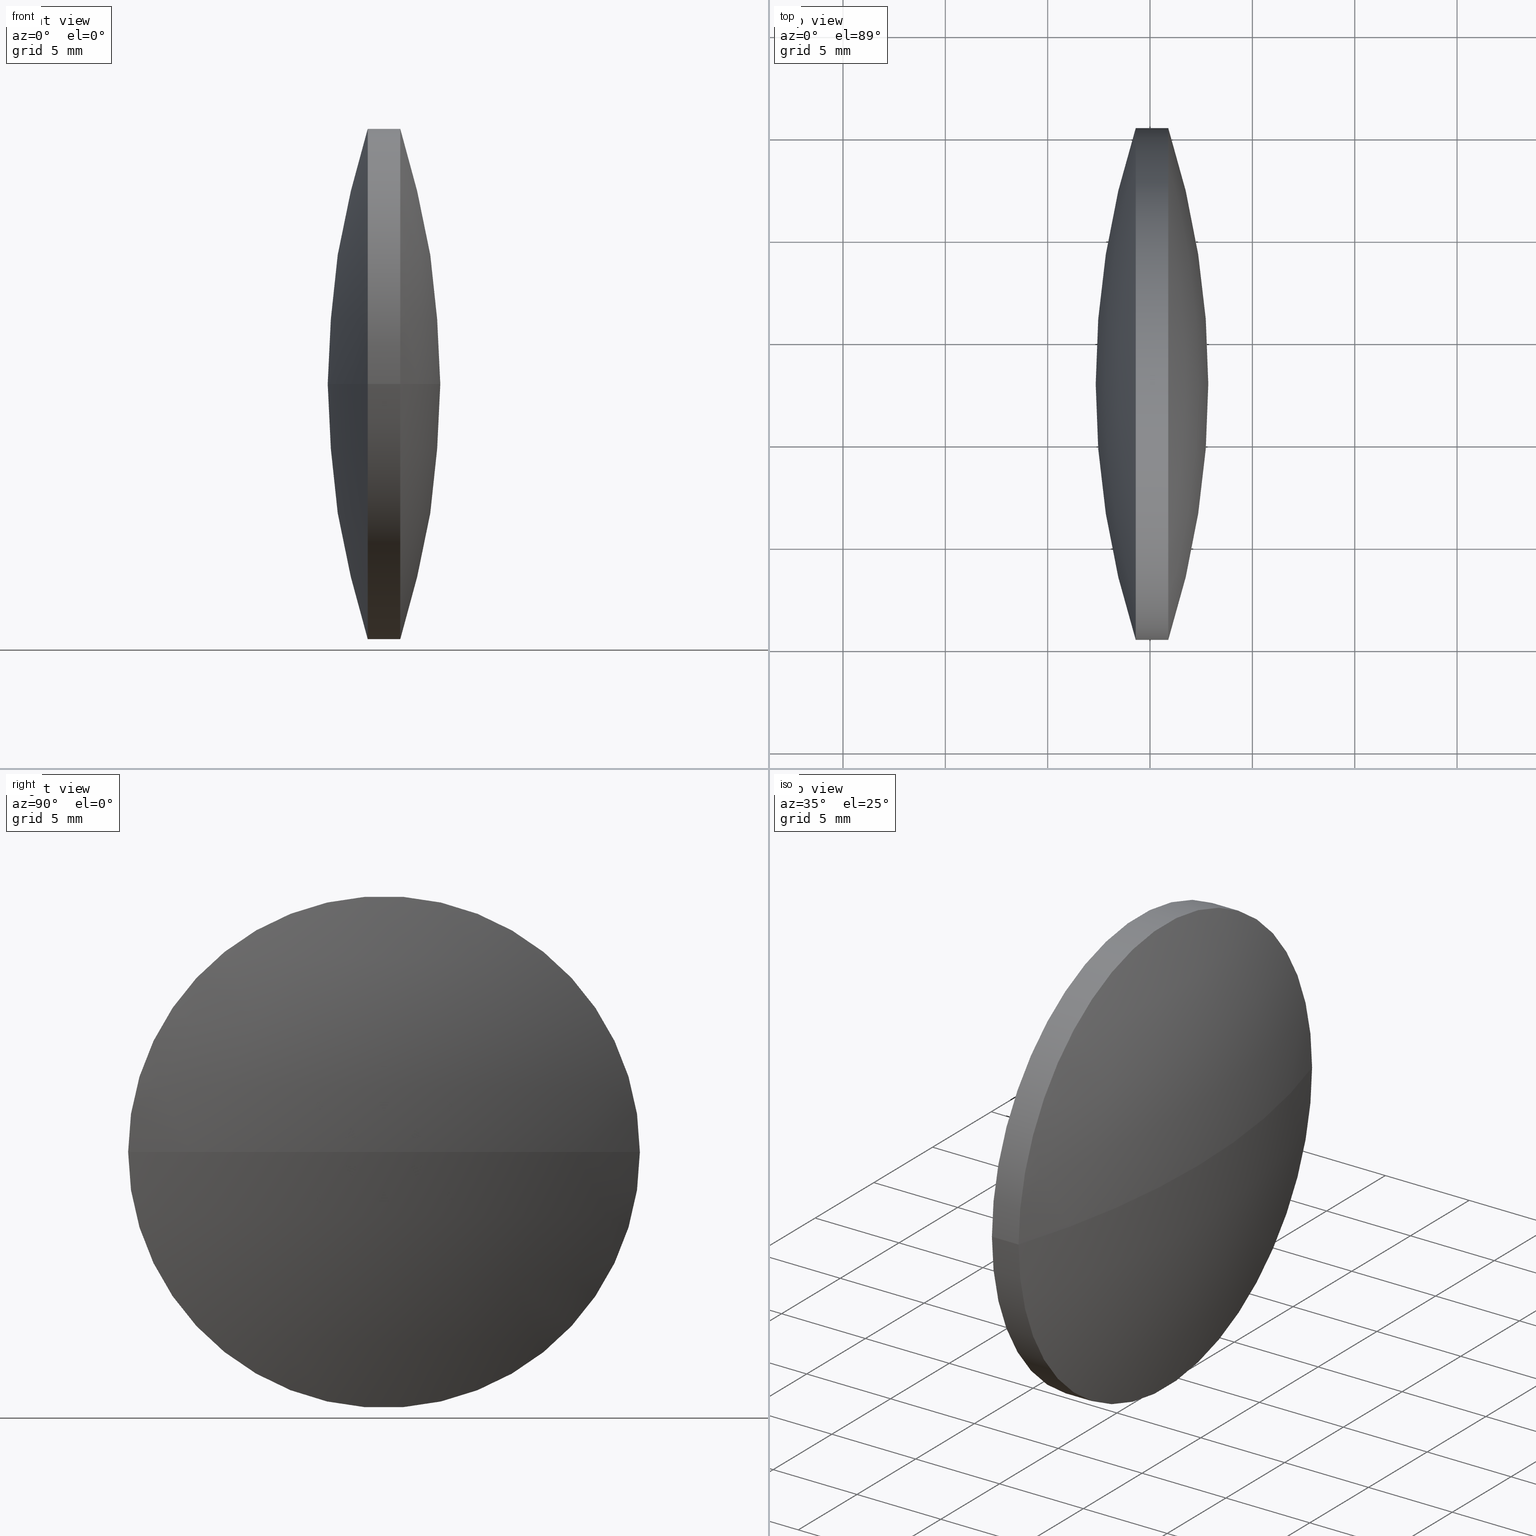
[diagram: canonical four-view strip — front | top / right | iso, engineering-drawing reading convention]
A machine part, canonical four-view strip (front | top / right | iso — engineering-drawing reading convention). The complete STEP part file that produces these views, byte-faithful:
ISO-10303-21;
HEADER;
FILE_DESCRIPTION (( 'STEP AP203' ),
    '1' );
FILE_NAME ('110017.STEP',
    '2019-06-25T06:04:12',
    ( '' ),
    ( '' ),
    'SwSTEP 2.0',
    'SolidWorks 2016',
    '' );
FILE_SCHEMA (( 'CONFIG_CONTROL_DESIGN' ));
ENDSEC;

DATA;
#1 = APPROVAL_DATE_TIME ( #155, #90 ) ;
#2 = CARTESIAN_POINT ( 'NONE',  ( 123.2857842446510100, 47.85050494407934700, 0.0000000000000000000 ) ) ;
#3 = ORIENTED_EDGE ( 'NONE', *, *, #148, .T. ) ;
#4 = CC_DESIGN_PERSON_AND_ORGANIZATION_ASSIGNMENT ( #129, #229, ( #127 ) ) ;
#5 = CC_DESIGN_PERSON_AND_ORGANIZATION_ASSIGNMENT ( #235, #253, ( #203 ) ) ;
#6 = PERSON_AND_ORGANIZATION ( #196, #99 ) ;
#7 = AXIS2_PLACEMENT_3D ( 'NONE', #194, #216, #76 ) ;
#8 = ORIENTED_EDGE ( 'NONE', *, *, #146, .T. ) ;
#9 = FACE_OUTER_BOUND ( 'NONE', #116, .T. ) ;
#10 = DESIGN_CONTEXT ( 'detailed design', #274, 'design' ) ;
#11 = ORIENTED_EDGE ( 'NONE', *, *, #264, .F. ) ;
#12 = PERSON_AND_ORGANIZATION ( #196, #99 ) ;
#13 = CC_DESIGN_DATE_AND_TIME_ASSIGNMENT ( #24, #278, ( #127 ) ) ;
#14 = EDGE_LOOP ( 'NONE', ( #186, #103, #286, #258 ) ) ;
#15 =( LENGTH_UNIT ( ) NAMED_UNIT ( * ) SI_UNIT ( .MILLI., .METRE. ) );
#16 = DATE_AND_TIME ( #272, #29 ) ;
#17 = MECHANICAL_CONTEXT ( 'NONE', #183, 'mechanical' ) ;
#18 = APPROVAL_ROLE ( '' ) ;
#19 = EDGE_LOOP ( 'NONE', ( #173, #93, #224 ) ) ;
#20 = ADVANCED_FACE ( 'NONE', ( #31 ), #134, .T. ) ;
#21 = SECURITY_CLASSIFICATION_LEVEL ( 'unclassified' ) ;
#22 = APPROVAL_DATE_TIME ( #160, #265 ) ;
#23 = EDGE_CURVE ( 'NONE', #25, #172, #44, .T. ) ;
#24 = DATE_AND_TIME ( #81, #147 ) ;
#25 = VERTEX_POINT ( 'NONE', #233 ) ;
#26 = DIRECTION ( 'NONE',  ( 0.0000000000000000000, 0.0000000000000000000, -1.000000000000000000 ) ) ;
#27 = PERSON_AND_ORGANIZATION ( #196, #99 ) ;
#28 = EDGE_CURVE ( 'NONE', #232, #172, #164, .T. ) ;
#29 = LOCAL_TIME ( 14, 4, 12.00000000000000000, #91 ) ;
#30 = DIRECTION ( 'NONE',  ( 4.406815958448730300E-015, 1.000000000000000000, 0.0000000000000000000 ) ) ;
#31 = FACE_OUTER_BOUND ( 'NONE', #136, .T. ) ;
#32 = LOCAL_TIME ( 14, 4, 12.00000000000000000, #138 ) ;
#33 = AXIS2_PLACEMENT_3D ( 'NONE', #206, #140, #163 ) ;
#34 = DIRECTION ( 'NONE',  ( -4.440892098500634100E-015, -1.000000000000000000, 0.0000000000000000000 ) ) ;
#35 = COORDINATED_UNIVERSAL_TIME_OFFSET ( 8, 0, .AHEAD. ) ;
#36 = FACE_OUTER_BOUND ( 'NONE', #19, .T. ) ;
#37 = VERTEX_POINT ( 'NONE', #142 ) ;
#38 = PERSON_AND_ORGANIZATION_ROLE ( 'creator' ) ;
#39 = APPROVAL_PERSON_ORGANIZATION ( #228, #188, #139 ) ;
#40 = SECURITY_CLASSIFICATION_LEVEL ( 'unclassified' ) ;
#41 = PERSON_AND_ORGANIZATION_ROLE ( 'creator' ) ;
#42 = AXIS2_PLACEMENT_3D ( 'NONE', #97, #48, #290 ) ;
#43 = LOCAL_TIME ( 14, 4, 12.00000000000000000, #102 ) ;
#44 = CIRCLE ( 'NONE', #296, 12.49999999999998400 ) ;
#45 = AXIS2_PLACEMENT_3D ( 'NONE', #260, #289, #271 ) ;
#46 = LOCAL_TIME ( 14, 4, 12.00000000000000000, #219 ) ;
#47 = DIRECTION ( 'NONE',  ( -4.440892098500634100E-015, -1.000000000000000000, 0.0000000000000000000 ) ) ;
#48 = DIRECTION ( 'NONE',  ( -1.000000000000000000, 4.264506765781650100E-015, -0.0000000000000000000 ) ) ;
#49 = PERSON_AND_ORGANIZATION ( #196, #99 ) ;
#50 = ORIENTED_EDGE ( 'NONE', *, *, #283, .F. ) ;
#51 = CALENDAR_DATE ( 2019, 25, 6 ) ;
#52 = AXIS2_PLACEMENT_3D ( 'NONE', #120, #144, #47 ) ;
#53 = PERSON_AND_ORGANIZATION ( #196, #99 ) ;
#54 = ORIENTED_EDGE ( 'NONE', *, *, #264, .T. ) ;
#55 =( NAMED_UNIT ( * ) PLANE_ANGLE_UNIT ( ) SI_UNIT ( $, .RADIAN. ) );
#56 = DATE_AND_TIME ( #302, #190 ) ;
#57 = CC_DESIGN_SECURITY_CLASSIFICATION ( #127, ( #231 ) ) ;
#58 = PERSON_AND_ORGANIZATION_ROLE ( 'classification_officer' ) ;
#59 = EDGE_CURVE ( 'NONE', #86, #255, #141, .T. ) ;
#60 = ADVANCED_FACE ( 'NONE', ( #209 ), #68, .T. ) ;
#61 = ADVANCED_FACE ( 'NONE', ( #197 ), #113, .T. ) ;
#62 = APPLICATION_PROTOCOL_DEFINITION ( 'international standard', 'config_control_design', 1994, #274 ) ;
#63 = COORDINATED_UNIVERSAL_TIME_OFFSET ( 8, 0, .AHEAD. ) ;
#64 = AXIS2_PLACEMENT_3D ( 'NONE', #95, #169, #300 ) ;
#65 = ORIENTED_EDGE ( 'NONE', *, *, #98, .T. ) ;
#66 = SPHERICAL_SURFACE ( 'NONE', #170, 40.93913682864477700 ) ;
#67 = VECTOR ( 'NONE', #180, 1000.000000000000000 ) ;
#68 = CYLINDRICAL_SURFACE ( 'NONE', #52, 12.49999999999997700 ) ;
#69 = DIRECTION ( 'NONE',  ( 0.0000000000000000000, 1.000000000000000000, 1.224646799147353200E-016 ) ) ;
#70 = CIRCLE ( 'NONE', #179, 40.93913682864476300 ) ;
#71 = DIRECTION ( 'NONE',  ( 4.237323036969965800E-015, 1.000000000000000000, 0.0000000000000000000 ) ) ;
#72 = CC_DESIGN_DATE_AND_TIME_ASSIGNMENT ( #284, #110, ( #268 ) ) ;
#73 = PERSON_AND_ORGANIZATION ( #196, #99 ) ;
#74 = DIRECTION ( 'NONE',  ( 0.0000000000000000000, 0.0000000000000000000, -1.000000000000000000 ) ) ;
#75 = CARTESIAN_POINT ( 'NONE',  ( 82.34664741600623500, 47.85050494407952500, 0.0000000000000000000 ) ) ;
#76 = DIRECTION ( 'NONE',  ( 0.0000000000000000000, 1.000000000000000000, 1.224646799147353200E-016 ) ) ;
#77 = PRODUCT ( '110017', '110017', '', ( #227 ) ) ;
#78 = PRODUCT_RELATED_PRODUCT_CATEGORY ( 'detail', '', ( #128 ) ) ;
#79 = LINE ( 'NONE', #104, #67 ) ;
#80 = LOCAL_TIME ( 14, 4, 12.00000000000000000, #35 ) ;
#81 = CALENDAR_DATE ( 2019, 25, 6 ) ;
#82 = DIRECTION ( 'NONE',  ( 1.000000000000000000, 0.0000000000000000000, 0.0000000000000000000 ) ) ;
#83 =( NAMED_UNIT ( * ) SI_UNIT ( $, .STERADIAN. ) SOLID_ANGLE_UNIT ( ) );
#84 = UNCERTAINTY_MEASURE_WITH_UNIT (LENGTH_MEASURE( 1.000000000000000100E-005 ), #15, 'distance_accuracy_value', 'NONE');
#85 = APPLICATION_PROTOCOL_DEFINITION ( 'international standard', 'config_control_design', 1994, #183 ) ;
#86 = VERTEX_POINT ( 'NONE', #189 ) ;
#87 = APPROVAL_STATUS ( 'not_yet_approved' ) ;
#88 = APPROVAL_DATE_TIME ( #177, #220 ) ;
#89 = APPROVAL_STATUS ( 'not_yet_approved' ) ;
#90 = APPROVAL ( #87, 'δָ��' ) ;
#91 = COORDINATED_UNIVERSAL_TIME_OFFSET ( 8, 0, .AHEAD. ) ;
#92 = CC_DESIGN_APPROVAL ( #218, ( #200 ) ) ;
#93 = ORIENTED_EDGE ( 'NONE', *, *, #59, .T. ) ;
#94 = EDGE_CURVE ( 'NONE', #37, #86, #285, .T. ) ;
#95 = CARTESIAN_POINT ( 'NONE',  ( 0.0000000000000000000, 0.0000000000000000000, 0.0000000000000000000 ) ) ;
#96 = ADVANCED_FACE ( 'NONE', ( #217 ), #195, .T. ) ;
#97 = CARTESIAN_POINT ( 'NONE',  ( 84.30164741600614800, 47.85050494407936800, 0.0000000000000000000 ) ) ;
#98 = EDGE_CURVE ( 'NONE', #172, #37, #234, .T. ) ;
#99 = ORGANIZATION ( 'δָ��', 'δָ��', '' ) ;
#100 = LOCAL_TIME ( 14, 4, 12.00000000000000000, #106 ) ;
#101 = AXIS2_PLACEMENT_3D ( 'NONE', #130, #238, #292 ) ;
#102 = COORDINATED_UNIVERSAL_TIME_OFFSET ( 8, 0, .AHEAD. ) ;
#103 = ORIENTED_EDGE ( 'NONE', *, *, #283, .T. ) ;
#104 = CARTESIAN_POINT ( 'NONE',  ( 81.21296991275001200, 35.35050494407940400, 0.0000000000000000000 ) ) ;
#105 = CARTESIAN_POINT ( 'NONE',  ( 85.89164741600619400, 60.35050494407934000, 0.0000000000000000000 ) ) ;
#106 = COORDINATED_UNIVERSAL_TIME_OFFSET ( 8, 0, .AHEAD. ) ;
#107 = PERSON_AND_ORGANIZATION_ROLE ( 'design_supplier' ) ;
#108 =( GEOMETRIC_REPRESENTATION_CONTEXT ( 3 ) GLOBAL_UNCERTAINTY_ASSIGNED_CONTEXT ( ( #84 ) ) GLOBAL_UNIT_ASSIGNED_CONTEXT ( ( #15, #55, #83 ) ) REPRESENTATION_CONTEXT ( 'NONE', 'WORKASPACE' ) );
#109 = APPROVAL_ROLE ( '' ) ;
#110 = DATE_TIME_ROLE ( 'classification_date' ) ;
#111 = PERSON_AND_ORGANIZATION ( #196, #99 ) ;
#112 = CC_DESIGN_APPROVAL ( #188, ( #251 ) ) ;
#113 = SPHERICAL_SURFACE ( 'NONE', #131, 40.93913682864445000 ) ;
#114 = DIRECTION ( 'NONE',  ( -1.000000000000000000, 4.264506765781650100E-015, -0.0000000000000000000 ) ) ;
#115 = CC_DESIGN_DATE_AND_TIME_ASSIGNMENT ( #198, #303, ( #251 ) ) ;
#116 = EDGE_LOOP ( 'NONE', ( #240, #54, #50 ) ) ;
#117 = VECTOR ( 'NONE', #248, 1000.000000000000000 ) ;
#118 = CALENDAR_DATE ( 2019, 25, 6 ) ;
#119 = ADVANCED_BREP_SHAPE_REPRESENTATION ( '110017', ( #151, #64 ), #108 ) ;
#120 = CARTESIAN_POINT ( 'NONE',  ( 81.21296991275006900, 47.85050494407938300, 0.0000000000000000000 ) ) ;
#121 = DIRECTION ( 'NONE',  ( 5.222514560656729000E-031, 1.224646799147353200E-016, -1.000000000000000000 ) ) ;
#122 = DIRECTION ( 'NONE',  ( -4.440892098500634100E-015, -1.000000000000000000, 0.0000000000000000000 ) ) ;
#123 = CC_DESIGN_APPROVAL ( #90, ( #268 ) ) ;
#124 = APPROVAL_PERSON_ORGANIZATION ( #171, #218, #158 ) ;
#125 = CLOSED_SHELL ( 'NONE', ( #96, #281, #277, #20, #61, #60 ) ) ;
#126 = COORDINATED_UNIVERSAL_TIME_OFFSET ( 8, 0, .AHEAD. ) ;
#127 = SECURITY_CLASSIFICATION ( '', '', #21 ) ;
#128 = PRODUCT ( '110017', '110017', '', ( #17 ) ) ;
#129 = PERSON_AND_ORGANIZATION ( #196, #99 ) ;
#130 = CARTESIAN_POINT ( 'NONE',  ( 0.0000000000000000000, 0.0000000000000000000, 0.0000000000000000000 ) ) ;
#131 = AXIS2_PLACEMENT_3D ( 'NONE', #287, #168, #71 ) ;
#132 = CC_DESIGN_APPROVAL ( #226, ( #127 ) ) ;
#133 = PERSON_AND_ORGANIZATION_ROLE ( 'creator' ) ;
#134 = SPHERICAL_SURFACE ( 'NONE', #33, 40.93913682864477700 ) ;
#135 = APPROVAL_STATUS ( 'not_yet_approved' ) ;
#136 = EDGE_LOOP ( 'NONE', ( #157, #8, #3 ) ) ;
#137 = APPROVAL_ROLE ( '' ) ;
#138 = COORDINATED_UNIVERSAL_TIME_OFFSET ( 8, 0, .AHEAD. ) ;
#139 = APPROVAL_ROLE ( '' ) ;
#140 = DIRECTION ( 'NONE',  ( 0.0000000000000000000, 0.0000000000000000000, -1.000000000000000000 ) ) ;
#141 = CIRCLE ( 'NONE', #159, 40.93913682864477700 ) ;
#142 = CARTESIAN_POINT ( 'NONE',  ( 84.30164741600620500, 60.35050494407931200, 0.0000000000000000000 ) ) ;
#143 = DESIGN_CONTEXT ( 'detailed design', #161, 'design' ) ;
#144 = DIRECTION ( 'NONE',  ( -1.000000000000000000, 4.264506765781650100E-015, -0.0000000000000000000 ) ) ;
#145 = CALENDAR_DATE ( 2019, 25, 6 ) ;
#146 = EDGE_CURVE ( 'NONE', #86, #37, #210, .T. ) ;
#147 = LOCAL_TIME ( 14, 4, 12.00000000000000000, #63 ) ;
#148 = EDGE_CURVE ( 'NONE', #37, #255, #70, .T. ) ;
#149 = CIRCLE ( 'NONE', #45, 12.49999999999998400 ) ;
#150 = ORIENTED_EDGE ( 'NONE', *, *, #213, .F. ) ;
#151 = MANIFOLD_SOLID_BREP ( '��ת1', #125 ) ;
#152 = CALENDAR_DATE ( 2019, 25, 6 ) ;
#153 = AXIS2_PLACEMENT_3D ( 'NONE', #298, #178, #34 ) ;
#154 = CC_DESIGN_PERSON_AND_ORGANIZATION_ASSIGNMENT ( #12, #107, ( #231 ) ) ;
#155 = DATE_AND_TIME ( #295, #46 ) ;
#156 = APPLICATION_PROTOCOL_DEFINITION ( 'international standard', 'config_control_design', 1994, #282 ) ;
#157 = ORIENTED_EDGE ( 'NONE', *, *, #59, .F. ) ;
#158 = APPROVAL_ROLE ( '' ) ;
#159 = AXIS2_PLACEMENT_3D ( 'NONE', #237, #121, #69 ) ;
#160 = DATE_AND_TIME ( #145, #100 ) ;
#161 = APPLICATION_CONTEXT ( 'configuration controlled 3d designs of mechanical parts and assemblies' ) ;
#162 = PRODUCT_RELATED_PRODUCT_CATEGORY ( 'detail', '', ( #77 ) ) ;
#163 = DIRECTION ( 'NONE',  ( 4.406815958448730300E-015, 1.000000000000000000, 0.0000000000000000000 ) ) ;
#164 = CIRCLE ( 'NONE', #236, 40.93913682864445700 ) ;
#165 = DIRECTION ( 'NONE',  ( -4.440892098500631700E-015, -1.000000000000000000, 0.0000000000000000000 ) ) ;
#166 = EDGE_LOOP ( 'NONE', ( #11, #246, #293 ) ) ;
#167 = LOCAL_TIME ( 14, 4, 12.00000000000000000, #181 ) ;
#168 = DIRECTION ( 'NONE',  ( 0.0000000000000000000, 0.0000000000000000000, -1.000000000000000000 ) ) ;
#169 = DIRECTION ( 'NONE',  ( 0.0000000000000000000, 0.0000000000000000000, 1.000000000000000000 ) ) ;
#170 = AXIS2_PLACEMENT_3D ( 'NONE', #2, #26, #30 ) ;
#171 = PERSON_AND_ORGANIZATION ( #196, #99 ) ;
#172 = VERTEX_POINT ( 'NONE', #105 ) ;
#173 = ORIENTED_EDGE ( 'NONE', *, *, #94, .T. ) ;
#174 = SHAPE_DEFINITION_REPRESENTATION ( #259, #119 ) ;
#175 = CC_DESIGN_PERSON_AND_ORGANIZATION_ASSIGNMENT ( #291, #250, ( #77 ) ) ;
#176 = CC_DESIGN_PERSON_AND_ORGANIZATION_ASSIGNMENT ( #279, #38, ( #200 ) ) ;
#177 = DATE_AND_TIME ( #118, #32 ) ;
#178 = DIRECTION ( 'NONE',  ( -1.000000000000000000, 4.264506765781650100E-015, -0.0000000000000000000 ) ) ;
#179 = AXIS2_PLACEMENT_3D ( 'NONE', #201, #225, #82 ) ;
#180 = DIRECTION ( 'NONE',  ( -1.000000000000000000, 4.264506765781650100E-015, -0.0000000000000000000 ) ) ;
#181 = COORDINATED_UNIVERSAL_TIME_OFFSET ( 8, 0, .AHEAD. ) ;
#182 = APPROVAL_STATUS ( 'not_yet_approved' ) ;
#183 = APPLICATION_CONTEXT ( 'configuration controlled 3d designs of mechanical parts and assemblies' ) ;
#184 = PERSON_AND_ORGANIZATION_ROLE ( 'creator' ) ;
#185 = APPROVAL_PERSON_ORGANIZATION ( #49, #220, #109 ) ;
#186 = ORIENTED_EDGE ( 'NONE', *, *, #98, .F. ) ;
#187 = DIRECTION ( 'NONE',  ( 0.0000000000000000000, 0.0000000000000000000, 1.000000000000000000 ) ) ;
#188 = APPROVAL ( #89, 'δָ��' ) ;
#189 = CARTESIAN_POINT ( 'NONE',  ( 84.30164741600609100, 35.35050494407955300, -1.530808498934185800E-015 ) ) ;
#190 = LOCAL_TIME ( 14, 4, 12.00000000000000000, #244 ) ;
#191 = DIRECTION ( 'NONE',  ( 1.000000000000000000, 0.0000000000000000000, 0.0000000000000000000 ) ) ;
#192 = APPROVAL_DATE_TIME ( #16, #226 ) ;
#193 = EDGE_LOOP ( 'NONE', ( #252, #65, #276, #150 ) ) ;
#194 = CARTESIAN_POINT ( 'NONE',  ( 46.90751058736174200, 47.85050494407934700, 0.0000000000000000000 ) ) ;
#195 = CYLINDRICAL_SURFACE ( 'NONE', #245, 12.49999999999997700 ) ;
#196 = PERSON ( 'δָ��', 'δָ��', 'δָ��', ('δָ��'), ('δָ��'), ('δָ��') ) ;
#197 = FACE_OUTER_BOUND ( 'NONE', #166, .T. ) ;
#198 = DATE_AND_TIME ( #215, #43 ) ;
#199 = CC_DESIGN_PERSON_AND_ORGANIZATION_ASSIGNMENT ( #6, #133, ( #251 ) ) ;
#200 = PRODUCT_DEFINITION ( 'δ֪', '', #231, #143 ) ;
#201 = CARTESIAN_POINT ( 'NONE',  ( 123.2857842446510100, 47.85050494407934700, 0.0000000000000000000 ) ) ;
#202 = DATE_TIME_ROLE ( 'creation_date' ) ;
#203 = PRODUCT_DEFINITION_FORMATION_WITH_SPECIFIED_SOURCE ( '�κ�', '', #128, .NOT_KNOWN. ) ;
#204 = APPROVAL_PERSON_ORGANIZATION ( #111, #265, #280 ) ;
#205 = PERSON_AND_ORGANIZATION_ROLE ( 'design_owner' ) ;
#206 = CARTESIAN_POINT ( 'NONE',  ( 123.2857842446510100, 47.85050494407934700, 0.0000000000000000000 ) ) ;
#207 = CARTESIAN_POINT ( 'NONE',  ( 46.90751058736174200, 47.85050494407934700, 0.0000000000000000000 ) ) ;
#208 = APPROVAL_PERSON_ORGANIZATION ( #267, #226, #18 ) ;
#209 = FACE_OUTER_BOUND ( 'NONE', #14, .T. ) ;
#210 = CIRCLE ( 'NONE', #153, 12.49999999999997700 ) ;
#211 = APPROVAL_DATE_TIME ( #56, #188 ) ;
#212 = CARTESIAN_POINT ( 'NONE',  ( 81.21296991275006900, 47.85050494407938300, 0.0000000000000000000 ) ) ;
#213 = EDGE_CURVE ( 'NONE', #25, #86, #79, .T. ) ;
#214 = CC_DESIGN_SECURITY_CLASSIFICATION ( #268, ( #203 ) ) ;
#215 = CALENDAR_DATE ( 2019, 25, 6 ) ;
#216 = DIRECTION ( 'NONE',  ( 5.222514560656729000E-031, 1.224646799147353200E-016, -1.000000000000000000 ) ) ;
#217 = FACE_OUTER_BOUND ( 'NONE', #193, .T. ) ;
#218 = APPROVAL ( #182, 'δָ��' ) ;
#219 = COORDINATED_UNIVERSAL_TIME_OFFSET ( 8, 0, .AHEAD. ) ;
#220 = APPROVAL ( #301, 'δָ��' ) ;
#221 = PRODUCT_DEFINITION_SHAPE ( 'NONE', 'NONE',  #251 ) ;
#222 = PERSON_AND_ORGANIZATION ( #196, #99 ) ;
#223 = CARTESIAN_POINT ( 'NONE',  ( 81.21296991275012500, 60.35050494407935400, 1.530808498934189200E-015 ) ) ;
#224 = ORIENTED_EDGE ( 'NONE', *, *, #148, .F. ) ;
#225 = DIRECTION ( 'NONE',  ( 0.0000000000000000000, 0.0000000000000000000, 1.000000000000000000 ) ) ;
#226 = APPROVAL ( #135, 'δָ��' ) ;
#227 = MECHANICAL_CONTEXT ( 'NONE', #282, 'mechanical' ) ;
#228 = PERSON_AND_ORGANIZATION ( #196, #99 ) ;
#229 = PERSON_AND_ORGANIZATION_ROLE ( 'classification_officer' ) ;
#230 = DATE_AND_TIME ( #51, #167 ) ;
#231 = PRODUCT_DEFINITION_FORMATION_WITH_SPECIFIED_SOURCE ( '�κ�', '', #77, .NOT_KNOWN. ) ;
#232 = VERTEX_POINT ( 'NONE', #241 ) ;
#233 = CARTESIAN_POINT ( 'NONE',  ( 85.89164741600608000, 35.35050494407919800, -1.530808498934189700E-015 ) ) ;
#234 = LINE ( 'NONE', #223, #117 ) ;
#235 = PERSON_AND_ORGANIZATION ( #196, #99 ) ;
#236 = AXIS2_PLACEMENT_3D ( 'NONE', #207, #187, #191 ) ;
#237 = CARTESIAN_POINT ( 'NONE',  ( 123.2857842446510100, 47.85050494407934700, 0.0000000000000000000 ) ) ;
#238 = DIRECTION ( 'NONE',  ( 0.0000000000000000000, 0.0000000000000000000, 1.000000000000000000 ) ) ;
#239 = LOCAL_TIME ( 14, 4, 12.00000000000000000, #126 ) ;
#240 = ORIENTED_EDGE ( 'NONE', *, *, #28, .F. ) ;
#241 = CARTESIAN_POINT ( 'NONE',  ( 87.84664741600620600, 47.85050494407916900, 0.0000000000000000000 ) ) ;
#242 = AXIS2_PLACEMENT_3D ( 'NONE', #266, #74, #263 ) ;
#243 = CALENDAR_DATE ( 2019, 25, 6 ) ;
#244 = COORDINATED_UNIVERSAL_TIME_OFFSET ( 8, 0, .AHEAD. ) ;
#245 = AXIS2_PLACEMENT_3D ( 'NONE', #212, #262, #122 ) ;
#246 = ORIENTED_EDGE ( 'NONE', *, *, #28, .T. ) ;
#247 = CC_DESIGN_PERSON_AND_ORGANIZATION_ASSIGNMENT ( #261, #41, ( #231 ) ) ;
#248 = DIRECTION ( 'NONE',  ( -1.000000000000000000, 4.264506765781650100E-015, -0.0000000000000000000 ) ) ;
#249 = APPLICATION_PROTOCOL_DEFINITION ( 'international standard', 'config_control_design', 1994, #161 ) ;
#250 = PERSON_AND_ORGANIZATION_ROLE ( 'design_owner' ) ;
#251 = PRODUCT_DEFINITION ( 'δ֪', '', #203, #10 ) ;
#252 = ORIENTED_EDGE ( 'NONE', *, *, #23, .T. ) ;
#253 = PERSON_AND_ORGANIZATION_ROLE ( 'design_supplier' ) ;
#254 = APPROVAL_DATE_TIME ( #269, #218 ) ;
#255 = VERTEX_POINT ( 'NONE', #75 ) ;
#256 = CARTESIAN_POINT ( 'NONE',  ( 85.89164741600615100, 47.85050494407936100, 0.0000000000000000000 ) ) ;
#257 = CC_DESIGN_PERSON_AND_ORGANIZATION_ASSIGNMENT ( #222, #205, ( #128 ) ) ;
#258 = ORIENTED_EDGE ( 'NONE', *, *, #94, .F. ) ;
#259 = PRODUCT_DEFINITION_SHAPE ( 'NONE', 'NONE',  #200 ) ;
#260 = CARTESIAN_POINT ( 'NONE',  ( 85.89164741600615100, 47.85050494407936100, 0.0000000000000000000 ) ) ;
#261 = PERSON_AND_ORGANIZATION ( #196, #99 ) ;
#262 = DIRECTION ( 'NONE',  ( -1.000000000000000000, 4.264506765781650100E-015, -0.0000000000000000000 ) ) ;
#263 = DIRECTION ( 'NONE',  ( 4.237323036969965800E-015, 1.000000000000000000, 0.0000000000000000000 ) ) ;
#264 = EDGE_CURVE ( 'NONE', #232, #25, #273, .T. ) ;
#265 = APPROVAL ( #304, 'δָ��' ) ;
#266 = CARTESIAN_POINT ( 'NONE',  ( 46.90751058736174200, 47.85050494407934700, 0.0000000000000000000 ) ) ;
#267 = PERSON_AND_ORGANIZATION ( #196, #99 ) ;
#268 = SECURITY_CLASSIFICATION ( '', '', #40 ) ;
#269 = DATE_AND_TIME ( #243, #239 ) ;
#270 = CC_DESIGN_APPROVAL ( #265, ( #231 ) ) ;
#271 = DIRECTION ( 'NONE',  ( -4.440892098500631700E-015, -1.000000000000000000, 0.0000000000000000000 ) ) ;
#272 = CALENDAR_DATE ( 2019, 25, 6 ) ;
#273 = CIRCLE ( 'NONE', #7, 40.93913682864445700 ) ;
#274 = APPLICATION_CONTEXT ( 'configuration controlled 3d designs of mechanical parts and assemblies' ) ;
#275 = CC_DESIGN_APPROVAL ( #220, ( #203 ) ) ;
#276 = ORIENTED_EDGE ( 'NONE', *, *, #146, .F. ) ;
#277 = ADVANCED_FACE ( 'NONE', ( #36 ), #66, .T. ) ;
#278 = DATE_TIME_ROLE ( 'classification_date' ) ;
#279 = PERSON_AND_ORGANIZATION ( #196, #99 ) ;
#280 = APPROVAL_ROLE ( '' ) ;
#281 = ADVANCED_FACE ( 'NONE', ( #9 ), #299, .T. ) ;
#282 = APPLICATION_CONTEXT ( 'configuration controlled 3d designs of mechanical parts and assemblies' ) ;
#283 = EDGE_CURVE ( 'NONE', #172, #25, #149, .T. ) ;
#284 = DATE_AND_TIME ( #152, #80 ) ;
#285 = CIRCLE ( 'NONE', #42, 12.49999999999997700 ) ;
#286 = ORIENTED_EDGE ( 'NONE', *, *, #213, .T. ) ;
#287 = CARTESIAN_POINT ( 'NONE',  ( 46.90751058736174200, 47.85050494407934700, 0.0000000000000000000 ) ) ;
#288 = CC_DESIGN_PERSON_AND_ORGANIZATION_ASSIGNMENT ( #53, #58, ( #268 ) ) ;
#289 = DIRECTION ( 'NONE',  ( -1.000000000000000000, 4.264506765781650100E-015, -0.0000000000000000000 ) ) ;
#290 = DIRECTION ( 'NONE',  ( -4.440892098500634100E-015, -1.000000000000000000, 0.0000000000000000000 ) ) ;
#291 = PERSON_AND_ORGANIZATION ( #196, #99 ) ;
#292 = DIRECTION ( 'NONE',  ( 1.000000000000000000, 0.0000000000000000000, 0.0000000000000000000 ) ) ;
#293 = ORIENTED_EDGE ( 'NONE', *, *, #23, .F. ) ;
#294 = CC_DESIGN_PERSON_AND_ORGANIZATION_ASSIGNMENT ( #27, #184, ( #203 ) ) ;
#295 = CALENDAR_DATE ( 2019, 25, 6 ) ;
#296 = AXIS2_PLACEMENT_3D ( 'NONE', #256, #114, #165 ) ;
#297 = APPROVAL_PERSON_ORGANIZATION ( #73, #90, #137 ) ;
#298 = CARTESIAN_POINT ( 'NONE',  ( 84.30164741600614800, 47.85050494407936800, 0.0000000000000000000 ) ) ;
#299 = SPHERICAL_SURFACE ( 'NONE', #242, 40.93913682864445000 ) ;
#300 = DIRECTION ( 'NONE',  ( 1.000000000000000000, 0.0000000000000000000, 0.0000000000000000000 ) ) ;
#301 = APPROVAL_STATUS ( 'not_yet_approved' ) ;
#302 = CALENDAR_DATE ( 2019, 25, 6 ) ;
#303 = DATE_TIME_ROLE ( 'creation_date' ) ;
#304 = APPROVAL_STATUS ( 'not_yet_approved' ) ;
#305 = CC_DESIGN_DATE_AND_TIME_ASSIGNMENT ( #230, #202, ( #200 ) ) ;
ENDSEC;
END-ISO-10303-21;
